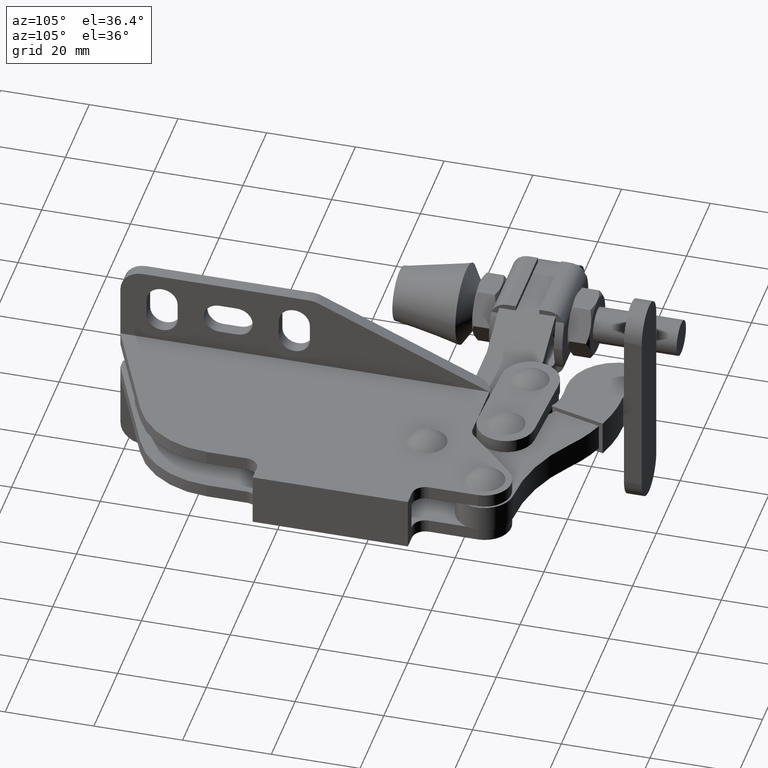
[diagram: clean part render]
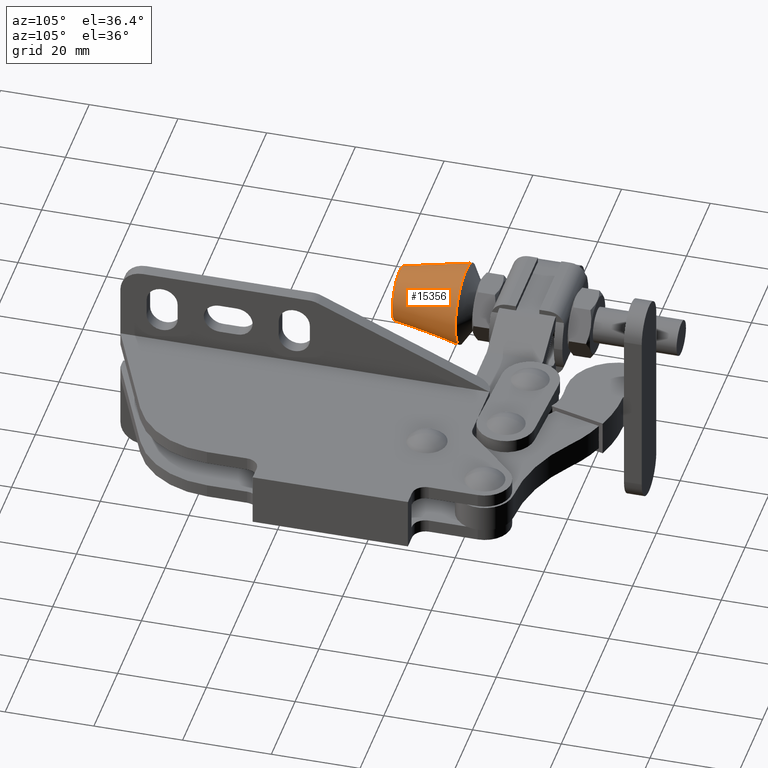
[diagram: same view with one face highlighted and labeled with its STEP entity id]
A machine part, auxiliary view. The second image highlights one B-rep face of the part: STEP entity #15356.
In plain terms, the highlighted conical surface has half-angle 11.31 deg.
Its self-contained STEP definition (entity closure, byte-faithful):
#258 = ORIENTED_EDGE ( 'NONE', *, *, #9536, .T. ) ;
#668 = VERTEX_POINT ( 'NONE', #13786 ) ;
#808 = AXIS2_PLACEMENT_3D ( 'NONE', #8111, #960, #9292 ) ;
#960 = DIRECTION ( 'NONE',  ( 6.844972190226000900E-017, -1.000000000000000000, -1.521337052038029000E-016 ) ) ;
#1384 = VERTEX_POINT ( 'NONE', #9117 ) ;
#1407 = DIRECTION ( 'NONE',  ( 0.08435854621781332900, 0.9805806756909202200, -0.1770456837699114500 ) ) ;
#1850 = CARTESIAN_POINT ( 'NONE',  ( -34.82465495830070500, 52.80000000000000400, -2.999999999999991100 ) ) ;
#1927 = DIRECTION ( 'NONE',  ( -0.08435854621781345400, 0.9805806756909202200, 0.1770456837699117500 ) ) ;
#1953 = AXIS2_PLACEMENT_3D ( 'NONE', #4736, #13005, #5922 ) ;
#2120 = ORIENTED_EDGE ( 'NONE', *, *, #3803, .T. ) ;
#2213 = EDGE_LOOP ( 'NONE', ( #13572, #2120, #258, #4539 ) ) ;
#2266 = VECTOR ( 'NONE', #1927, 999.9999999999998900 ) ;
#2679 = CARTESIAN_POINT ( 'NONE',  ( -32.20076513115272100, 52.80000000000000400, -8.506832317674943400 ) ) ;
#3065 = DIRECTION ( 'NONE',  ( -6.844972190226000900E-017, 1.000000000000000000, 1.521337052038029000E-016 ) ) ;
#3126 = EDGE_CURVE ( 'NONE', #14488, #668, #13283, .T. ) ;
#3803 = EDGE_CURVE ( 'NONE', #14488, #1384, #11072, .T. ) ;
#4539 = ORIENTED_EDGE ( 'NONE', *, *, #5317, .F. ) ;
#4736 = CARTESIAN_POINT ( 'NONE',  ( -34.82465495830070500, 52.80000000000000400, -2.999999999999991100 ) ) ;
#5000 = FACE_OUTER_BOUND ( 'NONE', #2213, .T. ) ;
#5317 = EDGE_CURVE ( 'NONE', #668, #9381, #8209, .T. ) ;
#5922 = DIRECTION ( 'NONE',  ( 0.4301458733029485700, 0.0000000000000000000, -0.9027593963401564500 ) ) ;
#7914 = VECTOR ( 'NONE', #1407, 1000.000000000000100 ) ;
#8111 = CARTESIAN_POINT ( 'NONE',  ( -34.82465495830070500, 67.79999999999999700, -2.999999999999988900 ) ) ;
#8209 = LINE ( 'NONE', #9048, #2266 ) ;
#8835 = CARTESIAN_POINT ( 'NONE',  ( -38.73898240535754700, 67.79999999999999700, 5.215110506695432400 ) ) ;
#9025 = DIRECTION ( 'NONE',  ( -0.4301458733029486800, 0.0000000000000000000, 0.9027593963401564500 ) ) ;
#9048 = CARTESIAN_POINT ( 'NONE',  ( -37.44854478544868900, 52.80000000000000400, 2.506832317674962100 ) ) ;
#9117 = CARTESIAN_POINT ( 'NONE',  ( -30.91032751124387400, 67.79999999999999700, -11.21511050669541200 ) ) ;
#9292 = DIRECTION ( 'NONE',  ( 0.4301458733029491800, 0.0000000000000000000, -0.9027593963401562300 ) ) ;
#9381 = VERTEX_POINT ( 'NONE', #8835 ) ;
#9536 = EDGE_CURVE ( 'NONE', #1384, #9381, #11552, .T. ) ;
#9817 = CONICAL_SURFACE ( 'NONE', #12960, 6.099999999999998800, 0.1973955598498808300 ) ;
#11072 = LINE ( 'NONE', #2679, #7914 ) ;
#11552 = CIRCLE ( 'NONE', #808, 9.100000000000001400 ) ;
#12960 = AXIS2_PLACEMENT_3D ( 'NONE', #1850, #3065, #9025 ) ;
#13005 = DIRECTION ( 'NONE',  ( 6.844972190226000900E-017, -1.000000000000000000, -1.521337052038029000E-016 ) ) ;
#13283 = CIRCLE ( 'NONE', #1953, 6.099999999999999600 ) ;
#13572 = ORIENTED_EDGE ( 'NONE', *, *, #3126, .F. ) ;
#13786 = CARTESIAN_POINT ( 'NONE',  ( -37.44854478544868900, 52.80000000000000400, 2.506832317674962100 ) ) ;
#14488 = VERTEX_POINT ( 'NONE', #15403 ) ;
#15356 = ADVANCED_FACE ( 'NONE', ( #5000 ), #9817, .T. ) ;
#15403 = CARTESIAN_POINT ( 'NONE',  ( -32.20076513115272100, 52.80000000000000400, -8.506832317674943400 ) ) ;